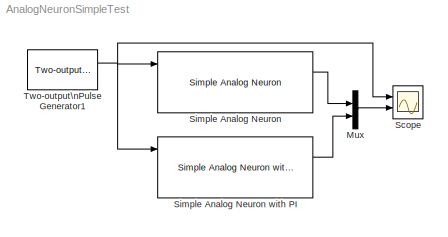
MODEL AnalogNeuronSimpleTest
KIND model
BLOCK [Mux] Mux
  DisplayOption = bar
  Inputs = 2
  Ports = [2, 1]
  SID = 15
BLOCK [Scope] Scope
  Floating = off
  NumInputPorts = 2
  Ports = [2]
  SID = 4
  ScopeSpecificationString = Simulink.scopes.TimeScopeBlockCfg('CurrentConfiguration', extmgr.ConfigurationSet(extmgr.Configuration('Core','General UI',true),extmgr.Configuration('Core','Source UI',true),extmgr.Configuration('Sources','WiredSimulink',true,'DataLoggingSaveFormat','StructureWithTime','DataLoggingLimitDataPoints',true,'DataLoggingDecimation','1','DataLoggingDecimateData',true),extmgr.Configuration('Visuals','Tim...<+2433ch>
BLOCK [Reference] Simple Analog Neuron  REF=NeuroModelerLibrary/Analog Simple Cells/Simple Analog Neuron
  AllowZeroVariantControls = off
  AutoFrameSizeCalculation = off
  Latency = 0
  Ports = [4, 2]
  PropagateVariantConditions = off
  RTWMemSecDataConstants = Inherit from model
  RTWMemSecDataInternal = Inherit from model
  RTWMemSecDataParameters = Inherit from model
  RTWMemSecFuncExecute = Inherit from model
  RTWMemSecFuncInitTerm = Inherit from model
  SID = 12
  ShowPortLabels = FromPortIcon
  SourceBlock = NeuroModelerLibrary/Analog Simple Cells/Simple Analog Neuron
  SourceType = SubSystem
  SystemSampleTime = -1
  VariantActivationTime = update diagram
BLOCK [Reference] Simple Analog Neuron with PI  REF=NeuroModelerLibrary/Analog Simple Cells/Simple Analog Neuron with PI
  AllowZeroVariantControls = off
  AutoFrameSizeCalculation = off
  Latency = 0
  Ports = [4, 2]
  PropagateVariantConditions = off
  RTWMemSecDataConstants = Inherit from model
  RTWMemSecDataInternal = Inherit from model
  RTWMemSecDataParameters = Inherit from model
  RTWMemSecFuncExecute = Inherit from model
  RTWMemSecFuncInitTerm = Inherit from model
  SID = 17
  ShowPortLabels = FromPortIcon
  SourceBlock = NeuroModelerLibrary/Analog Simple Cells/Simple Analog Neuron with PI
  SourceType = SubSystem
  SystemSampleTime = -1
  VariantActivationTime = update diagram
BLOCK [Reference] Two-output\nPulse Generator1  REF=NeuroModelerLibrary/Support/Two-output\nPulse Generator
  A = 1
  OOff1 = 0.6
  OOff2 = 1.2
  OOn1 = 0.3
  OOn2 = 1.1
  P1 = 200
  P2 = 200
  PW = 1
  Ports = [0, 2]
  RTWMemSecDataConstants = Inherit from model
  RTWMemSecDataInternal = Inherit from model
  RTWMemSecDataParameters = Inherit from model
  RTWMemSecFuncExecute = Inherit from model
  RTWMemSecFuncInitTerm = Inherit from model
  SID = 8
  ST = 0.001
  SourceBlock = NeuroModelerLibrary/Support/Two-output\nPulse Generator
LINE Mux:1 -> Scope:2
LINE Simple Analog Neuron with PI:1 -> Mux:2
LINE Simple Analog Neuron:1 -> Mux:1
NET Two-output\nPulse Generator1:1 -> Scope:1, Simple Analog Neuron with PI:1, Simple Analog Neuron:1
note: NET lines group one-source signal fan-out (src -> all destinations, sorted); 1:1 wires keep LINE
